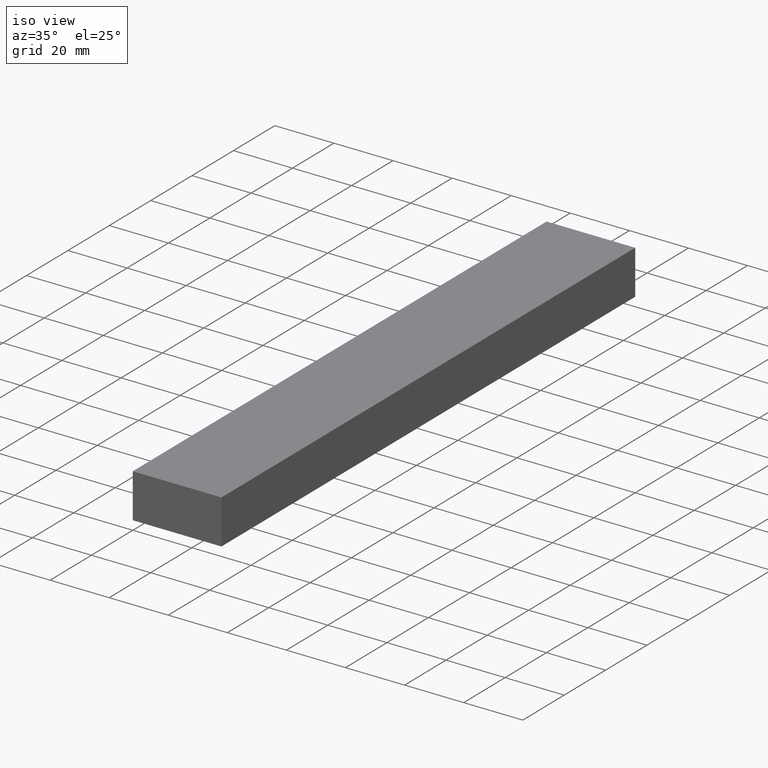
[diagram: clean part render]
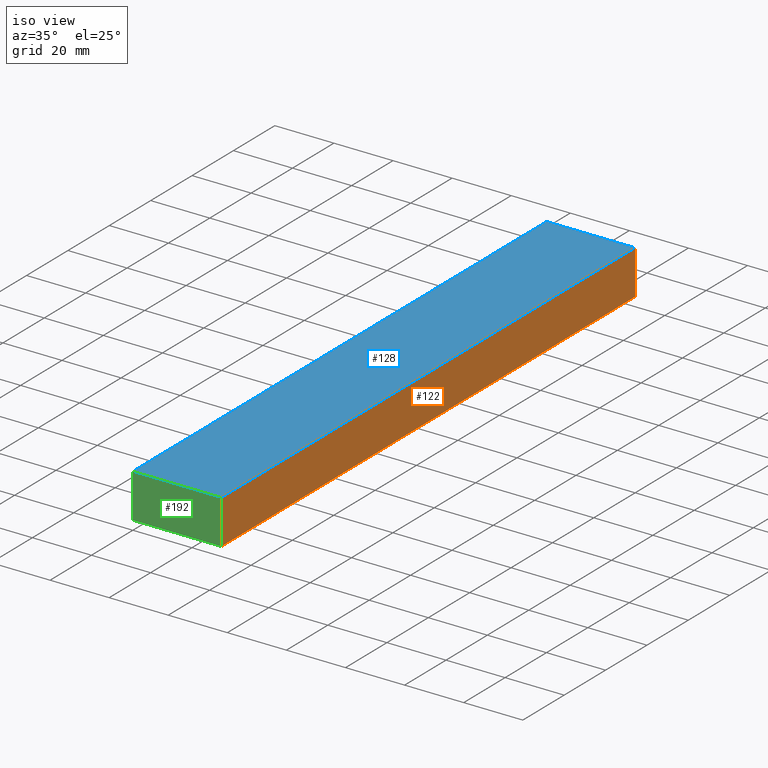
[diagram: same view with three faces highlighted in distinct colors, each labeled with its STEP entity id]
A machine part, iso view with three faces highlighted in distinct colors.
Their STEP definitions:

[orange] entity #122 — the highlighted planar face has unit normal (1, 0, 0).
#7 = VECTOR ( 'NONE', #90, 1000.000000000000000 ) ;
#15 = CARTESIAN_POINT ( 'NONE',  ( 30.00000000000000000, 0.0000000000000000000, -5.000000000000000000 ) ) ;
#23 = VECTOR ( 'NONE', #198, 1000.000000000000000 ) ;
#26 = ORIENTED_EDGE ( 'NONE', *, *, #96, .F. ) ;
#27 = CARTESIAN_POINT ( 'NONE',  ( 30.00000000000000000, 0.0000000000000000000, 10.00000000000000000 ) ) ;
#32 = CARTESIAN_POINT ( 'NONE',  ( 30.00000000000000000, 0.0000000000000000000, -5.000000000000000000 ) ) ;
#48 = DIRECTION ( 'NONE',  ( 1.000000000000000000, 0.0000000000000000000, 0.0000000000000000000 ) ) ;
#56 = LINE ( 'NONE', #162, #63 ) ;
#60 = EDGE_CURVE ( 'NONE', #83, #203, #62, .T. ) ;
#62 = LINE ( 'NONE', #165, #7 ) ;
#63 = VECTOR ( 'NONE', #116, 1000.000000000000000 ) ;
#66 = DIRECTION ( 'NONE',  ( 0.0000000000000000000, 0.0000000000000000000, -1.000000000000000000 ) ) ;
#83 = VERTEX_POINT ( 'NONE', #180 ) ;
#90 = DIRECTION ( 'NONE',  ( 0.0000000000000000000, 0.0000000000000000000, 1.000000000000000000 ) ) ;
#93 = CARTESIAN_POINT ( 'NONE',  ( 30.00000000000000000, 200.0000000000000000, 10.00000000000000000 ) ) ;
#96 = EDGE_CURVE ( 'NONE', #227, #203, #151, .T. ) ;
#109 = VECTOR ( 'NONE', #238, 1000.000000000000000 ) ;
#113 = AXIS2_PLACEMENT_3D ( 'NONE', #15, #48, #66 ) ;
#116 = DIRECTION ( 'NONE',  ( 0.0000000000000000000, 0.0000000000000000000, 1.000000000000000000 ) ) ;
#122 = ADVANCED_FACE ( 'NONE', ( #190 ), #133, .T. ) ;
#133 = PLANE ( 'NONE',  #113 ) ;
#149 = EDGE_CURVE ( 'NONE', #183, #227, #56, .T. ) ;
#151 = LINE ( 'NONE', #157, #109 ) ;
#157 = CARTESIAN_POINT ( 'NONE',  ( 30.00000000000000000, 0.0000000000000000000, 10.00000000000000000 ) ) ;
#162 = CARTESIAN_POINT ( 'NONE',  ( 30.00000000000000000, 0.0000000000000000000, -5.000000000000000000 ) ) ;
#163 = ORIENTED_EDGE ( 'NONE', *, *, #232, .T. ) ;
#165 = CARTESIAN_POINT ( 'NONE',  ( 30.00000000000000000, 200.0000000000000000, -5.000000000000000000 ) ) ;
#169 = LINE ( 'NONE', #199, #23 ) ;
#175 = ORIENTED_EDGE ( 'NONE', *, *, #149, .F. ) ;
#179 = EDGE_LOOP ( 'NONE', ( #26, #175, #163, #220 ) ) ;
#180 = CARTESIAN_POINT ( 'NONE',  ( 30.00000000000000000, 200.0000000000000000, -5.000000000000000000 ) ) ;
#183 = VERTEX_POINT ( 'NONE', #32 ) ;
#190 = FACE_OUTER_BOUND ( 'NONE', #179, .T. ) ;
#198 = DIRECTION ( 'NONE',  ( 0.0000000000000000000, 1.000000000000000000, 0.0000000000000000000 ) ) ;
#199 = CARTESIAN_POINT ( 'NONE',  ( 30.00000000000000000, 0.0000000000000000000, -5.000000000000000000 ) ) ;
#203 = VERTEX_POINT ( 'NONE', #93 ) ;
#220 = ORIENTED_EDGE ( 'NONE', *, *, #60, .T. ) ;
#227 = VERTEX_POINT ( 'NONE', #27 ) ;
#232 = EDGE_CURVE ( 'NONE', #183, #83, #169, .T. ) ;
#238 = DIRECTION ( 'NONE',  ( 0.0000000000000000000, 1.000000000000000000, 0.0000000000000000000 ) ) ;

[blue] entity #128 — the highlighted planar face has unit normal (0, 0, 1).
#2 = EDGE_CURVE ( 'NONE', #203, #104, #120, .T. ) ;
#10 = EDGE_CURVE ( 'NONE', #104, #49, #130, .T. ) ;
#11 = CARTESIAN_POINT ( 'NONE',  ( 0.0000000000000000000, 0.0000000000000000000, 10.00000000000000000 ) ) ;
#27 = CARTESIAN_POINT ( 'NONE',  ( 30.00000000000000000, 0.0000000000000000000, 10.00000000000000000 ) ) ;
#31 = PLANE ( 'NONE',  #39 ) ;
#37 = ORIENTED_EDGE ( 'NONE', *, *, #142, .T. ) ;
#39 = AXIS2_PLACEMENT_3D ( 'NONE', #219, #47, #195 ) ;
#40 = ORIENTED_EDGE ( 'NONE', *, *, #10, .T. ) ;
#47 = DIRECTION ( 'NONE',  ( 0.0000000000000000000, 0.0000000000000000000, 1.000000000000000000 ) ) ;
#49 = VERTEX_POINT ( 'NONE', #11 ) ;
#71 = CARTESIAN_POINT ( 'NONE',  ( 0.0000000000000000000, 200.0000000000000000, 10.00000000000000000 ) ) ;
#72 = ORIENTED_EDGE ( 'NONE', *, *, #2, .T. ) ;
#79 = VECTOR ( 'NONE', #222, 1000.000000000000000 ) ;
#89 = CARTESIAN_POINT ( 'NONE',  ( 0.0000000000000000000, 200.0000000000000000, 10.00000000000000000 ) ) ;
#93 = CARTESIAN_POINT ( 'NONE',  ( 30.00000000000000000, 200.0000000000000000, 10.00000000000000000 ) ) ;
#94 = VECTOR ( 'NONE', #177, 1000.000000000000000 ) ;
#96 = EDGE_CURVE ( 'NONE', #227, #203, #151, .T. ) ;
#104 = VERTEX_POINT ( 'NONE', #71 ) ;
#109 = VECTOR ( 'NONE', #238, 1000.000000000000000 ) ;
#120 = LINE ( 'NONE', #125, #224 ) ;
#125 = CARTESIAN_POINT ( 'NONE',  ( 30.00000000000000000, 200.0000000000000000, 10.00000000000000000 ) ) ;
#128 = ADVANCED_FACE ( 'NONE', ( #223 ), #31, .T. ) ;
#130 = LINE ( 'NONE', #89, #79 ) ;
#137 = LINE ( 'NONE', #176, #94 ) ;
#142 = EDGE_CURVE ( 'NONE', #49, #227, #137, .T. ) ;
#151 = LINE ( 'NONE', #157, #109 ) ;
#157 = CARTESIAN_POINT ( 'NONE',  ( 30.00000000000000000, 0.0000000000000000000, 10.00000000000000000 ) ) ;
#176 = CARTESIAN_POINT ( 'NONE',  ( 0.0000000000000000000, 0.0000000000000000000, 10.00000000000000000 ) ) ;
#177 = DIRECTION ( 'NONE',  ( 1.000000000000000000, 0.0000000000000000000, 0.0000000000000000000 ) ) ;
#185 = EDGE_LOOP ( 'NONE', ( #40, #37, #229, #72 ) ) ;
#195 = DIRECTION ( 'NONE',  ( 1.000000000000000000, 0.0000000000000000000, 0.0000000000000000000 ) ) ;
#203 = VERTEX_POINT ( 'NONE', #93 ) ;
#219 = CARTESIAN_POINT ( 'NONE',  ( 0.0000000000000000000, 0.0000000000000000000, 10.00000000000000000 ) ) ;
#222 = DIRECTION ( 'NONE',  ( 0.0000000000000000000, -1.000000000000000000, 0.0000000000000000000 ) ) ;
#223 = FACE_OUTER_BOUND ( 'NONE', #185, .T. ) ;
#224 = VECTOR ( 'NONE', #228, 1000.000000000000000 ) ;
#227 = VERTEX_POINT ( 'NONE', #27 ) ;
#228 = DIRECTION ( 'NONE',  ( -1.000000000000000000, 0.0000000000000000000, 0.0000000000000000000 ) ) ;
#229 = ORIENTED_EDGE ( 'NONE', *, *, #96, .T. ) ;
#238 = DIRECTION ( 'NONE',  ( 0.0000000000000000000, 1.000000000000000000, 0.0000000000000000000 ) ) ;

[green] entity #192 — the highlighted planar face has unit normal (0, -1, 0).
#11 = CARTESIAN_POINT ( 'NONE',  ( 0.0000000000000000000, 0.0000000000000000000, 10.00000000000000000 ) ) ;
#16 = DIRECTION ( 'NONE',  ( 0.0000000000000000000, -1.000000000000000000, 0.0000000000000000000 ) ) ;
#18 = ORIENTED_EDGE ( 'NONE', *, *, #142, .F. ) ;
#27 = CARTESIAN_POINT ( 'NONE',  ( 30.00000000000000000, 0.0000000000000000000, 10.00000000000000000 ) ) ;
#32 = CARTESIAN_POINT ( 'NONE',  ( 30.00000000000000000, 0.0000000000000000000, -5.000000000000000000 ) ) ;
#33 = EDGE_LOOP ( 'NONE', ( #18, #114, #82, #210 ) ) ;
#43 = VECTOR ( 'NONE', #148, 1000.000000000000000 ) ;
#49 = VERTEX_POINT ( 'NONE', #11 ) ;
#56 = LINE ( 'NONE', #162, #63 ) ;
#59 = VERTEX_POINT ( 'NONE', #76 ) ;
#63 = VECTOR ( 'NONE', #116, 1000.000000000000000 ) ;
#76 = CARTESIAN_POINT ( 'NONE',  ( 0.0000000000000000000, 0.0000000000000000000, -5.000000000000000000 ) ) ;
#80 = FACE_OUTER_BOUND ( 'NONE', #33, .T. ) ;
#82 = ORIENTED_EDGE ( 'NONE', *, *, #221, .T. ) ;
#94 = VECTOR ( 'NONE', #177, 1000.000000000000000 ) ;
#108 = DIRECTION ( 'NONE',  ( 0.0000000000000000000, 0.0000000000000000000, -1.000000000000000000 ) ) ;
#110 = EDGE_CURVE ( 'NONE', #59, #49, #172, .T. ) ;
#114 = ORIENTED_EDGE ( 'NONE', *, *, #110, .F. ) ;
#116 = DIRECTION ( 'NONE',  ( 0.0000000000000000000, 0.0000000000000000000, 1.000000000000000000 ) ) ;
#124 = DIRECTION ( 'NONE',  ( 0.0000000000000000000, 0.0000000000000000000, 1.000000000000000000 ) ) ;
#131 = CARTESIAN_POINT ( 'NONE',  ( 0.0000000000000000000, 0.0000000000000000000, -5.000000000000000000 ) ) ;
#132 = AXIS2_PLACEMENT_3D ( 'NONE', #147, #16, #108 ) ;
#137 = LINE ( 'NONE', #176, #94 ) ;
#142 = EDGE_CURVE ( 'NONE', #49, #227, #137, .T. ) ;
#147 = CARTESIAN_POINT ( 'NONE',  ( 0.0000000000000000000, 0.0000000000000000000, -5.000000000000000000 ) ) ;
#148 = DIRECTION ( 'NONE',  ( 1.000000000000000000, 0.0000000000000000000, 0.0000000000000000000 ) ) ;
#149 = EDGE_CURVE ( 'NONE', #183, #227, #56, .T. ) ;
#162 = CARTESIAN_POINT ( 'NONE',  ( 30.00000000000000000, 0.0000000000000000000, -5.000000000000000000 ) ) ;
#164 = PLANE ( 'NONE',  #132 ) ;
#172 = LINE ( 'NONE', #131, #202 ) ;
#176 = CARTESIAN_POINT ( 'NONE',  ( 0.0000000000000000000, 0.0000000000000000000, 10.00000000000000000 ) ) ;
#177 = DIRECTION ( 'NONE',  ( 1.000000000000000000, 0.0000000000000000000, 0.0000000000000000000 ) ) ;
#183 = VERTEX_POINT ( 'NONE', #32 ) ;
#192 = ADVANCED_FACE ( 'NONE', ( #80 ), #164, .T. ) ;
#202 = VECTOR ( 'NONE', #124, 1000.000000000000000 ) ;
#207 = LINE ( 'NONE', #218, #43 ) ;
#210 = ORIENTED_EDGE ( 'NONE', *, *, #149, .T. ) ;
#218 = CARTESIAN_POINT ( 'NONE',  ( 0.0000000000000000000, 0.0000000000000000000, -5.000000000000000000 ) ) ;
#221 = EDGE_CURVE ( 'NONE', #59, #183, #207, .T. ) ;
#227 = VERTEX_POINT ( 'NONE', #27 ) ;